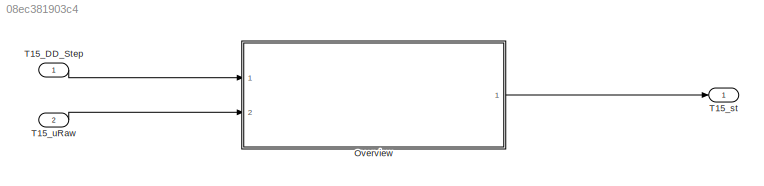
MODEL slx_08ec381903c4
KIND model
CONFIG AbsTol = auto
CONFIG EnableMultiTasking = off
CONFIG FixedStep = 0.001
CONFIG MaxStep = auto
CONFIG MinStep = auto
CONFIG RelTol = 1e-3
CONFIG SampleTimeConstraint = Unconstrained
CONFIG SolverName = FixedStepDiscrete
CONFIG StartTime = 0.0
CONFIG StopTime = Inf
WORKSPACE source: mxarray member
WORKSPACE T15_DD_DT = 10
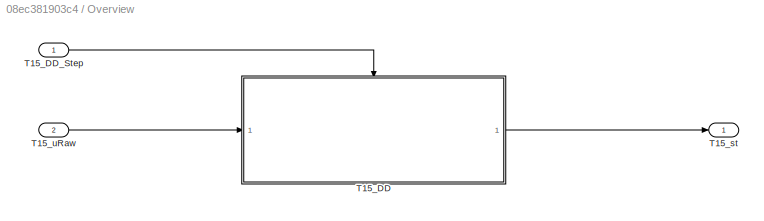
BLOCK [SubSystem] Overview
  Ports = [2, 1]
  RequestExecContextInheritance = off
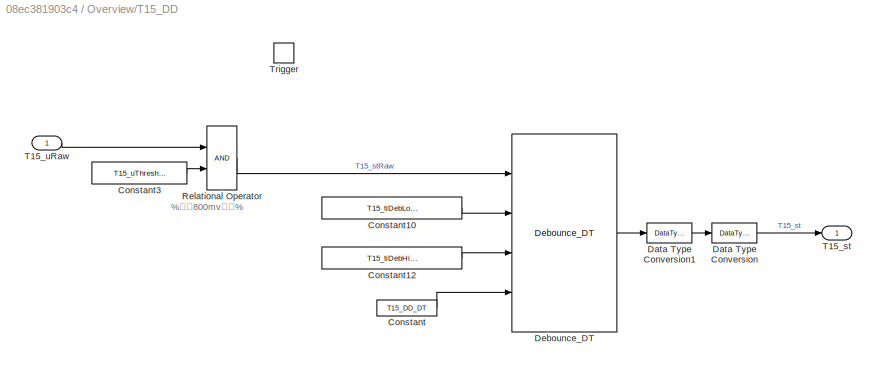
BLOCK [SubSystem] Overview/T15_DD
  Ports = [1, 1, 0, 1]
  RequestExecContextInheritance = off
BLOCK [Constant] Overview/T15_DD/Constant
  OutDataTypeStr = Inherit: Inherit via back propagation
  Value = T15_DD_DT
BLOCK [Constant] Overview/T15_DD/Constant10
  Value = T15_tiDebLoHi_C
BLOCK [Constant] Overview/T15_DD/Constant12
  Value = T15_tiDebHiLo_C
BLOCK [Constant] Overview/T15_DD/Constant3
  Value = T15_uThreshold_C
BLOCK [DataTypeConversion] Overview/T15_DD/Data Type Conversion
  RndMeth = Floor
  SaturateOnIntegerOverflow = off
BLOCK [DataTypeConversion] Overview/T15_DD/Data Type Conversion1
  OutDataTypeStr = uint8
  RndMeth = Floor
  SaturateOnIntegerOverflow = off
BLOCK [Reference] Overview/T15_DD/Debounce_DT  REF=sllib/Timer and counter operators/Debounce_DT  (lib defined in slx_2b0aa6d284ff)
  Ports = [4, 1]
  SourceBlock = sllib/Timer and counter operators/Debounce_DT
  SourceProductName = sllib
  SourceType = Debounce_DT
BLOCK [RelationalOperator] Overview/T15_DD/Relational Operator
  OutDataTypeStr = boolean
  Ports = [2, 1]
BLOCK [Outport] Overview/T15_DD/T15_st
  VectorParamsAs1DForOutWhenUnconnected = off
BLOCK [Inport] Overview/T15_DD/T15_uRaw
  Tag = mv
BLOCK [TriggerPort] Overview/T15_DD/Trigger
  PortDimensions = 1
  Ports = []
  StatesWhenEnabling = held
  TriggerType = function-call
  VariantControl = Variant
BLOCK [Inport] Overview/T15_DD_Step
BLOCK [Outport] Overview/T15_st
  VectorParamsAs1DForOutWhenUnconnected = off
BLOCK [Inport] Overview/T15_uRaw
  Port = 2
BLOCK [Inport] T15_DD_Step
  OutputFunctionCall = on
BLOCK [Outport] T15_st
  Description = Terminal 15 status after debouncing
  OutDataTypeStr = Enum:Switch
  PortDimensions = [1 1]
BLOCK [Inport] T15_uRaw
  Description = Raw ADC value of downstream engine coolant temperature sensor signal
  OutDataTypeStr = Volt_mV1
  OutMax = 5000
  OutMin = 0
  Port = 2
  PortDimensions = [1 1]
  Unit = mv
ANNOTATION Overview/T15_DD: %大于800mv为高%
LINE Overview/T15_DD/Constant10:1 -> Overview/T15_DD/Debounce_DT:2
LINE Overview/T15_DD/Constant12:1 -> Overview/T15_DD/Debounce_DT:3
LINE Overview/T15_DD/Constant3:1 -> Overview/T15_DD/Relational Operator:2
LINE Overview/T15_DD/Constant:1 -> Overview/T15_DD/Debounce_DT:4
LINE Overview/T15_DD/Data Type Conversion1:1 -> Overview/T15_DD/Data Type Conversion:1
LINE Overview/T15_DD/Data Type Conversion:1 -> Overview/T15_DD/T15_st:1
LINE Overview/T15_DD/Debounce_DT:1 -> Overview/T15_DD/Data Type Conversion1:1
LINE Overview/T15_DD/Relational Operator:1 -> Overview/T15_DD/Debounce_DT:1
LINE Overview/T15_DD/T15_uRaw:1 -> Overview/T15_DD/Relational Operator:1
LINE Overview/T15_DD:1 -> Overview/T15_st:1
LINE Overview/T15_DD_Step:1 -> Overview/T15_DD:trigger
LINE Overview/T15_uRaw:1 -> Overview/T15_DD:1
LINE Overview:1 -> T15_st:1
LINE T15_DD_Step:1 -> Overview:1
LINE T15_uRaw:1 -> Overview:2
